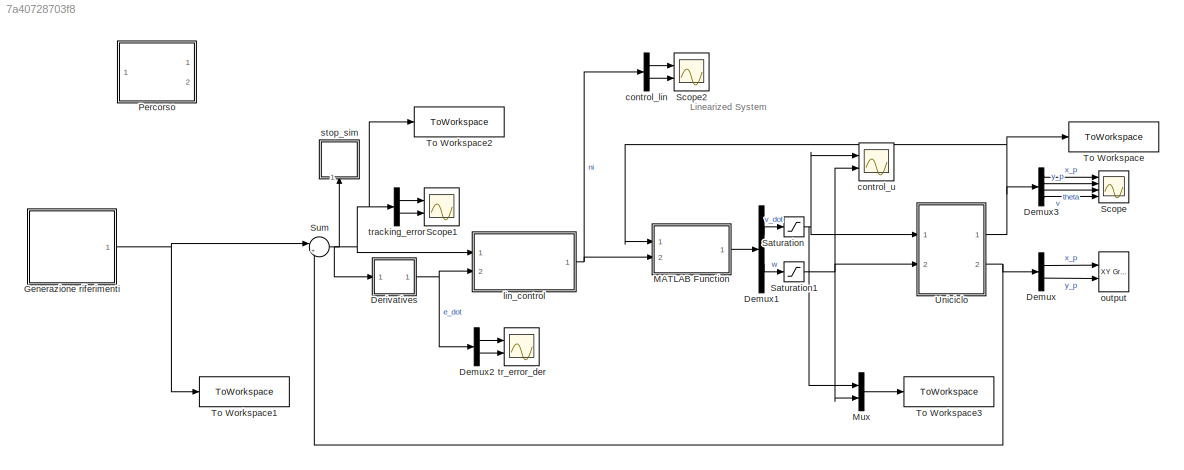
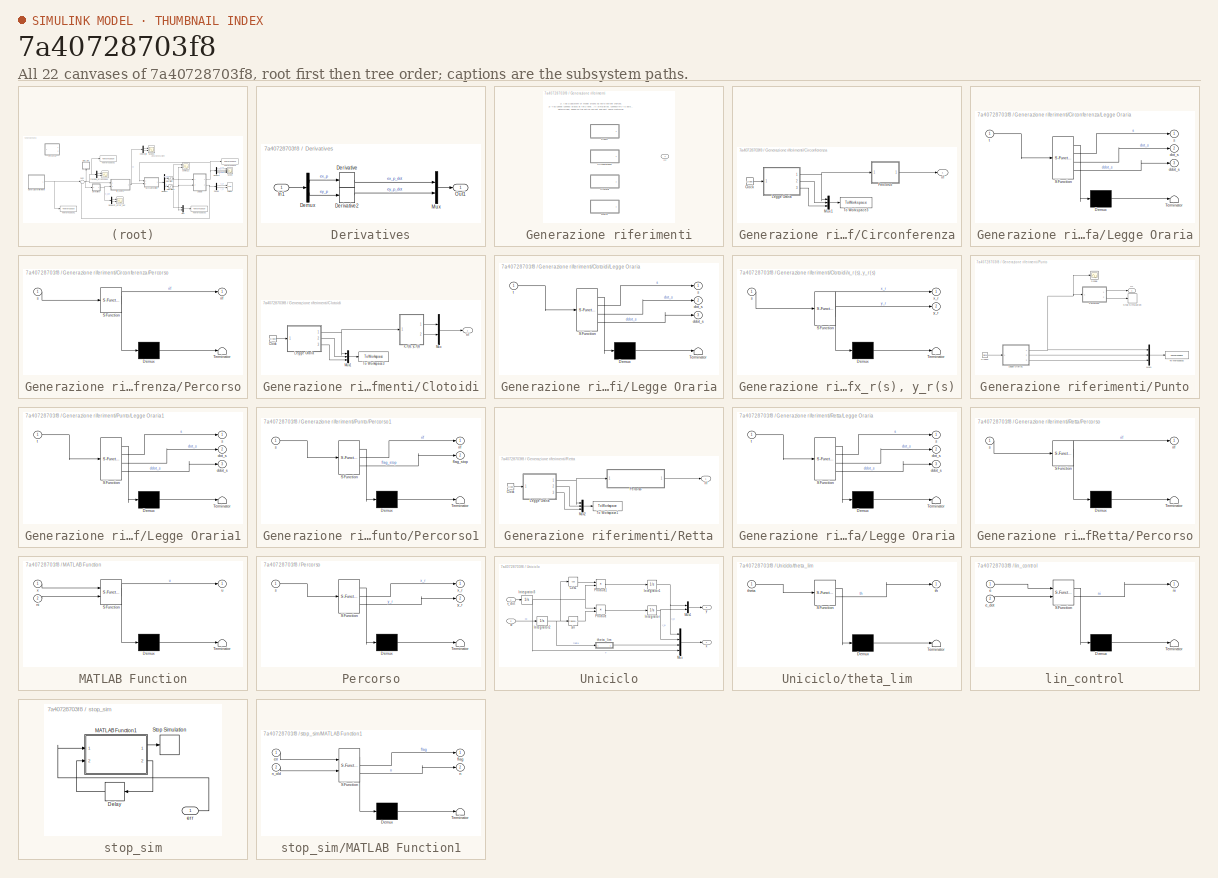
[diagram: thumbnail index - all 22 canvases of the model, root first then tree order]
MODEL slx_7a40728703f8
KIND model
CONFIG AbsTol = auto
CONFIG EnableMultiTasking = off
CONFIG FixedStep = auto
CONFIG InitFcn = init_uniciclo
CONFIG MaxStep = 0.01
CONFIG MinStep = auto
CONFIG RelTol = 1e-3
CONFIG SampleTimeConstraint = Unconstrained
CONFIG Solver = VariableStepAuto
CONFIG SolverName = VariableStepAuto
CONFIG StartTime = 0.0
CONFIG StopFcn = stop_uniciclo
CONFIG StopTime = Inf
BLOCK [Demux] Demux
  Outputs = 2
  Ports = [1, 2]
BLOCK [Demux] Demux1
  Outputs = 2
  Ports = [1, 2]
BLOCK [Demux] Demux2
  Outputs = 2
  Ports = [1, 2]
BLOCK [Demux] Demux3
  Ports = [1, 4]
BLOCK [SubSystem] Derivatives
  Ports = [1, 1]
  RequestExecContextInheritance = off
BLOCK [Demux] Derivatives/Demux
  Outputs = 2
  Ports = [1, 2]
BLOCK [Derivative] Derivatives/Derivative
  CoefficientInTFapproximation = 1e10
BLOCK [Derivative] Derivatives/Derivative2
  CoefficientInTFapproximation = 1e10
BLOCK [Inport] Derivatives/In1
BLOCK [Mux] Derivatives/Mux
  DisplayOption = bar
  Inputs = 2
  Ports = [2, 1]
BLOCK [Outport] Derivatives/Out1
BLOCK [SubSystem] Generazione riferimenti
  Ports = [0, 1]
  RequestExecContextInheritance = off
  Variant = on
BLOCK [SubSystem] Generazione riferimenti/Circonferenza
  Ports = [0, 1]
  RequestExecContextInheritance = off
  VariantControl = Circonferenza
BLOCK [Clock] Generazione riferimenti/Circonferenza/Clock
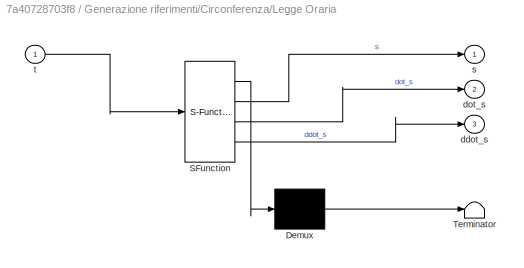
BLOCK [SubSystem] Generazione riferimenti/Circonferenza/Legge Oraria
  ErrorFcn = Stateflow.Translate.translate
  PermitHierarchicalResolution = ExplicitOnly
  Ports = [1, 3]
  RequestExecContextInheritance = off
  SFBlockType = MATLAB Function
  TreatAsAtomicUnit = on
BLOCK [Demux] Generazione riferimenti/Circonferenza/Legge Oraria/ Demux 
  Outputs = 1
  Ports = [1, 1]
BLOCK [S-Function] Generazione riferimenti/Circonferenza/Legge Oraria/ SFunction 
  EnableBusSupport = on
  FunctionName = sf_sfun
  Parameters = v_rif
  PortCounts = [1 4]
  Ports = [1, 4]
  SFcnIsStateOwnerBlock = off
  SFunctionDeploymentMode = off
  Tag = Stateflow S-Function 9
BLOCK [Terminator] Generazione riferimenti/Circonferenza/Legge Oraria/ Terminator 
BLOCK [Outport] Generazione riferimenti/Circonferenza/Legge Oraria/ddot_s
  Port = 3
BLOCK [Outport] Generazione riferimenti/Circonferenza/Legge Oraria/dot_s
  Port = 2
BLOCK [Outport] Generazione riferimenti/Circonferenza/Legge Oraria/s
BLOCK [Inport] Generazione riferimenti/Circonferenza/Legge Oraria/t
BLOCK [Mux] Generazione riferimenti/Circonferenza/Mux1
  DisplayOption = bar
  Inputs = 3
  Ports = [3, 1]
BLOCK [SubSystem] Generazione riferimenti/Circonferenza/Percorso
  ErrorFcn = Stateflow.Translate.translate
  PermitHierarchicalResolution = ExplicitOnly
  Ports = [1, 1]
  RequestExecContextInheritance = off
  SFBlockType = MATLAB Function
  TreatAsAtomicUnit = on
BLOCK [Demux] Generazione riferimenti/Circonferenza/Percorso/ Demux 
  Outputs = 1
  Ports = [1, 1]
BLOCK [S-Function] Generazione riferimenti/Circonferenza/Percorso/ SFunction 
  EnableBusSupport = on
  FunctionName = sf_sfun
  Parameters = centro,v_r
  PortCounts = [1 2]
  Ports = [1, 2]
  SFcnIsStateOwnerBlock = off
  SFunctionDeploymentMode = off
  Tag = Stateflow S-Function 10
BLOCK [Terminator] Generazione riferimenti/Circonferenza/Percorso/ Terminator 
BLOCK [Outport] Generazione riferimenti/Circonferenza/Percorso/rif
BLOCK [Inport] Generazione riferimenti/Circonferenza/Percorso/s
BLOCK [ToWorkspace] Generazione riferimenti/Circonferenza/To Workspace3
  FixptAsFi = on
  MaxDataPoints = inf
  Ports = [1]
  SampleTime = -1
  SaveFormat = Timeseries
  VariableName = curv_coord
BLOCK [Outport] Generazione riferimenti/Circonferenza/rif
BLOCK [SubSystem] Generazione riferimenti/Clotoidi
  Ports = [0, 1]
  RequestExecContextInheritance = off
  VariantControl = Clotoidi
BLOCK [Clock] Generazione riferimenti/Clotoidi/Clock
BLOCK [SubSystem] Generazione riferimenti/Clotoidi/Legge Oraria
  ErrorFcn = Stateflow.Translate.translate
  PermitHierarchicalResolution = ExplicitOnly
  Ports = [1, 3]
  RequestExecContextInheritance = off
  SFBlockType = MATLAB Function
  TreatAsAtomicUnit = on
BLOCK [Demux] Generazione riferimenti/Clotoidi/Legge Oraria/ Demux 
  Outputs = 1
  Ports = [1, 1]
BLOCK [S-Function] Generazione riferimenti/Clotoidi/Legge Oraria/ SFunction 
  EnableBusSupport = on
  FunctionName = sf_sfun
  Parameters = v_rif
  PortCounts = [1 4]
  Ports = [1, 4]
  SFcnIsStateOwnerBlock = off
  SFunctionDeploymentMode = off
  Tag = Stateflow S-Function 7
BLOCK [Terminator] Generazione riferimenti/Clotoidi/Legge Oraria/ Terminator 
BLOCK [Outport] Generazione riferimenti/Clotoidi/Legge Oraria/ddot_s
  Port = 3
BLOCK [Outport] Generazione riferimenti/Clotoidi/Legge Oraria/dot_s
  Port = 2
BLOCK [Outport] Generazione riferimenti/Clotoidi/Legge Oraria/s
BLOCK [Inport] Generazione riferimenti/Clotoidi/Legge Oraria/t
BLOCK [Mux] Generazione riferimenti/Clotoidi/Mux
  DisplayOption = bar
  Inputs = 2
  Ports = [2, 1]
BLOCK [Mux] Generazione riferimenti/Clotoidi/Mux1
  DisplayOption = bar
  Inputs = 3
  Ports = [3, 1]
BLOCK [ToWorkspace] Generazione riferimenti/Clotoidi/To Workspace3
  FixptAsFi = on
  MaxDataPoints = inf
  Ports = [1]
  SampleTime = -1
  SaveFormat = Timeseries
  VariableName = curv_coord
BLOCK [Outport] Generazione riferimenti/Clotoidi/rif
BLOCK [SubSystem] Generazione riferimenti/Clotoidi/x_r(s), y_r(s)
  ErrorFcn = Stateflow.Translate.translate
  PermitHierarchicalResolution = ExplicitOnly
  Ports = [1, 2]
  RequestExecContextInheritance = off
  SFBlockType = MATLAB Function
  TreatAsAtomicUnit = on
BLOCK [Demux] Generazione riferimenti/Clotoidi/x_r(s), y_r(s)/ Demux 
  Outputs = 1
  Ports = [1, 1]
BLOCK [S-Function] Generazione riferimenti/Clotoidi/x_r(s), y_r(s)/ SFunction 
  EnableBusSupport = on
  FunctionName = sf_sfun
  Parameters = Lsofar,Lsofarclot,Ltot,indexclot,n_p,theta_rette,xp,yp
  PortCounts = [1 3]
  Ports = [1, 3]
  SFcnIsStateOwnerBlock = off
  SFunctionDeploymentMode = off
  Tag = Stateflow S-Function 13
BLOCK [Terminator] Generazione riferimenti/Clotoidi/x_r(s), y_r(s)/ Terminator 
BLOCK [Inport] Generazione riferimenti/Clotoidi/x_r(s), y_r(s)/s
BLOCK [Outport] Generazione riferimenti/Clotoidi/x_r(s), y_r(s)/x_r
  VectorParamsAs1DForOutWhenUnconnected = off
BLOCK [Outport] Generazione riferimenti/Clotoidi/x_r(s), y_r(s)/y_r
  Port = 2
  VectorParamsAs1DForOutWhenUnconnected = off
BLOCK [SubSystem] Generazione riferimenti/Punto
  Ports = [0, 1]
  RequestExecContextInheritance = off
  VariantControl = Punto
BLOCK [Clock] Generazione riferimenti/Punto/Clock2
BLOCK [SubSystem] Generazione riferimenti/Punto/Legge Oraria1
  ErrorFcn = Stateflow.Translate.translate
  PermitHierarchicalResolution = ExplicitOnly
  Ports = [1, 3]
  RequestExecContextInheritance = off
  SFBlockType = MATLAB Function
  TreatAsAtomicUnit = on
BLOCK [Demux] Generazione riferimenti/Punto/Legge Oraria1/ Demux 
  Outputs = 1
  Ports = [1, 1]
BLOCK [S-Function] Generazione riferimenti/Punto/Legge Oraria1/ SFunction 
  EnableBusSupport = on
  FunctionName = sf_sfun
  Parameters = v_rif
  PortCounts = [1 4]
  Ports = [1, 4]
  SFcnIsStateOwnerBlock = off
  SFunctionDeploymentMode = off
  Tag = Stateflow S-Function 16
BLOCK [Terminator] Generazione riferimenti/Punto/Legge Oraria1/ Terminator 
BLOCK [Outport] Generazione riferimenti/Punto/Legge Oraria1/ddot_s
  Port = 3
BLOCK [Outport] Generazione riferimenti/Punto/Legge Oraria1/dot_s
  Port = 2
BLOCK [Outport] Generazione riferimenti/Punto/Legge Oraria1/s
BLOCK [Inport] Generazione riferimenti/Punto/Legge Oraria1/t
BLOCK [Mux] Generazione riferimenti/Punto/Mux1
  DisplayOption = bar
  Inputs = 3
  Ports = [3, 1]
BLOCK [SubSystem] Generazione riferimenti/Punto/Percorso1
  ErrorFcn = Stateflow.Translate.translate
  PermitHierarchicalResolution = ExplicitOnly
  Ports = [1, 2]
  RequestExecContextInheritance = off
  SFBlockType = MATLAB Function
  TreatAsAtomicUnit = on
BLOCK [Demux] Generazione riferimenti/Punto/Percorso1/ Demux 
  Outputs = 1
  Ports = [1, 1]
BLOCK [S-Function] Generazione riferimenti/Punto/Percorso1/ SFunction 
  EnableBusSupport = on
  FunctionName = sf_sfun
  Parameters = dir_retta,s_finale,x_p_iniziale,y_p_iniziale
  PortCounts = [1 3]
  Ports = [1, 3]
  SFcnIsStateOwnerBlock = off
  SFunctionDeploymentMode = off
  Tag = Stateflow S-Function 28
BLOCK [Terminator] Generazione riferimenti/Punto/Percorso1/ Terminator 
BLOCK [Outport] Generazione riferimenti/Punto/Percorso1/flag_stop
  Port = 2
BLOCK [Outport] Generazione riferimenti/Punto/Percorso1/rif
BLOCK [Inport] Generazione riferimenti/Punto/Percorso1/s
BLOCK [Scope] Generazione riferimenti/Punto/Scope
  Floating = off
  NumInputPorts = 1
  Ports = [1]
  ScopeSpecificationString = Simulink.scopes.TimeScopeBlockCfg('CurrentConfiguration', extmgr.ConfigurationSet(extmgr.Configuration('Core','General UI',true),extmgr.Configuration('Core','Source UI',true),extmgr.Configuration('Sources','WiredSimulink',true,'DataLoggingVariableName','ScopeData1'),extmgr.Configuration('Visuals','Time Domain',true,'SerializedDisplays',{struct('MinYLimReal','-8.54167','MaxYLimReal','76.875','YLabe...<+1544ch>
BLOCK [Stop] Generazione riferimenti/Punto/Stop Simulation
BLOCK [ToWorkspace] Generazione riferimenti/Punto/To Workspace2
  FixptAsFi = on
  MaxDataPoints = inf
  Ports = [1]
  SampleTime = -1
  SaveFormat = Timeseries
  VariableName = curv_coord
BLOCK [Outport] Generazione riferimenti/Punto/rif
BLOCK [SubSystem] Generazione riferimenti/Retta
  Ports = [0, 1]
  RequestExecContextInheritance = off
  VariantControl = Retta
BLOCK [Clock] Generazione riferimenti/Retta/Clock
BLOCK [SubSystem] Generazione riferimenti/Retta/Legge Oraria
  ErrorFcn = Stateflow.Translate.translate
  PermitHierarchicalResolution = ExplicitOnly
  Ports = [1, 3]
  RequestExecContextInheritance = off
  SFBlockType = MATLAB Function
  TreatAsAtomicUnit = on
BLOCK [Demux] Generazione riferimenti/Retta/Legge Oraria/ Demux 
  Outputs = 1
  Ports = [1, 1]
BLOCK [S-Function] Generazione riferimenti/Retta/Legge Oraria/ SFunction 
  EnableBusSupport = on
  FunctionName = sf_sfun
  Parameters = v_rif
  PortCounts = [1 4]
  Ports = [1, 4]
  SFcnIsStateOwnerBlock = off
  SFunctionDeploymentMode = off
  Tag = Stateflow S-Function 11
BLOCK [Terminator] Generazione riferimenti/Retta/Legge Oraria/ Terminator 
BLOCK [Outport] Generazione riferimenti/Retta/Legge Oraria/ddot_s
  Port = 3
BLOCK [Outport] Generazione riferimenti/Retta/Legge Oraria/dot_s
  Port = 2
BLOCK [Outport] Generazione riferimenti/Retta/Legge Oraria/s
BLOCK [Inport] Generazione riferimenti/Retta/Legge Oraria/t
BLOCK [Mux] Generazione riferimenti/Retta/Mux2
  DisplayOption = bar
  Inputs = 3
  Ports = [3, 1]
BLOCK [SubSystem] Generazione riferimenti/Retta/Percorso
  ErrorFcn = Stateflow.Translate.translate
  PermitHierarchicalResolution = ExplicitOnly
  Ports = [1, 1]
  RequestExecContextInheritance = off
  SFBlockType = MATLAB Function
  TreatAsAtomicUnit = on
BLOCK [Demux] Generazione riferimenti/Retta/Percorso/ Demux 
  Outputs = 1
  Ports = [1, 1]
BLOCK [S-Function] Generazione riferimenti/Retta/Percorso/ SFunction 
  EnableBusSupport = on
  FunctionName = sf_sfun
  Parameters = dir_retta
  PortCounts = [1 2]
  Ports = [1, 2]
  SFcnIsStateOwnerBlock = off
  SFunctionDeploymentMode = off
  Tag = Stateflow S-Function 12
BLOCK [Terminator] Generazione riferimenti/Retta/Percorso/ Terminator 
BLOCK [Outport] Generazione riferimenti/Retta/Percorso/rif
BLOCK [Inport] Generazione riferimenti/Retta/Percorso/s
BLOCK [ToWorkspace] Generazione riferimenti/Retta/To Workspace1
  FixptAsFi = on
  MaxDataPoints = inf
  Ports = [1]
  SampleTime = -1
  SaveFormat = Timeseries
  VariableName = curv_coord
BLOCK [Outport] Generazione riferimenti/Retta/rif
BLOCK [Outport] Generazione riferimenti/rif
BLOCK [SubSystem] MATLAB Function
  ErrorFcn = Stateflow.Translate.translate
  PermitHierarchicalResolution = ExplicitOnly
  Ports = [2, 1]
  RequestExecContextInheritance = off
  SFBlockType = MATLAB Function
  TreatAsAtomicUnit = on
BLOCK [Demux] MATLAB Function/ Demux 
  Outputs = 1
  Ports = [1, 1]
BLOCK [S-Function] MATLAB Function/ SFunction 
  EnableBusSupport = on
  FunctionName = sf_sfun
  PortCounts = [2 2]
  Ports = [2, 2]
  SFcnIsStateOwnerBlock = off
  SFunctionDeploymentMode = off
  Tag = Stateflow S-Function 2
BLOCK [Terminator] MATLAB Function/ Terminator 
BLOCK [Inport] MATLAB Function/ni
  Port = 2
BLOCK [Outport] MATLAB Function/u
BLOCK [Inport] MATLAB Function/x
BLOCK [Mux] Mux
  DisplayOption = bar
  Inputs = 2
  Ports = [2, 1]
BLOCK [SubSystem] Percorso
  Commented = on
  ErrorFcn = Stateflow.Translate.translate
  PermitHierarchicalResolution = ExplicitOnly
  Ports = [1, 2]
  RequestExecContextInheritance = off
  SFBlockType = MATLAB Function
  TreatAsAtomicUnit = on
BLOCK [Demux] Percorso/ Demux 
  Outputs = 1
  Ports = [1, 1]
BLOCK [S-Function] Percorso/ SFunction 
  EnableBusSupport = on
  FunctionName = sf_sfun
  PortCounts = [1 3]
  Ports = [1, 3]
  SFcnIsStateOwnerBlock = off
  SFunctionDeploymentMode = off
  Tag = Stateflow S-Function 8
BLOCK [Terminator] Percorso/ Terminator 
BLOCK [Inport] Percorso/s
BLOCK [Outport] Percorso/x_r
BLOCK [Outport] Percorso/y_r
  Port = 2
BLOCK [Saturate] Saturation
  LowerLimit = -v_dot_sat
  UpperLimit = v_dot_sat
BLOCK [Saturate] Saturation1
  LowerLimit = -w_sat
  UpperLimit = w_sat
BLOCK [Scope] Scope
  Floating = off
  NumInputPorts = 4
  Ports = [4]
  ScopeSpecificationString = Simulink.scopes.TimeScopeBlockCfg('CurrentConfiguration', extmgr.ConfigurationSet(extmgr.Configuration('Core','General UI',true),extmgr.Configuration('Core','Source UI',true),extmgr.Configuration('Sources','WiredSimulink',true,'DataLoggingVariableName','ScopeData4'),extmgr.Configuration('Visuals','Time Domain',true,'SerializedDisplays',{struct('MinYLimReal','-14.28289','MaxYLimReal','11.72577','YL...<+1550ch>
BLOCK [Scope] Scope1
  Floating = off
  NumInputPorts = 2
  Ports = [2]
  ScopeSpecificationString = Simulink.scopes.TimeScopeBlockCfg('CurrentConfiguration', extmgr.ConfigurationSet(extmgr.Configuration('Core','General UI',true),extmgr.Configuration('Core','Source UI',true),extmgr.Configuration('Sources','WiredSimulink',true,'DataLoggingVariableName','ScopeData1'),extmgr.Configuration('Visuals','Time Domain',true,'SerializedDisplays',{struct('MinYLimReal','-0.00141','MaxYLimReal','0.02236','YLab...<+1443ch>
BLOCK [Scope] Scope2
  Floating = off
  NumInputPorts = 2
  Ports = [2]
  ScopeSpecificationString = Simulink.scopes.TimeScopeBlockCfg('CurrentConfiguration', extmgr.ConfigurationSet(extmgr.Configuration('Core','General UI',true),extmgr.Configuration('Core','Source UI',true),extmgr.Configuration('Sources','WiredSimulink',true,'DataLoggingVariableName','ScopeData3'),extmgr.Configuration('Visuals','Time Domain',true,'SerializedDisplays',{struct('MinYLimReal','-257.45886','MaxYLimReal','714.73045','...<+1477ch>
BLOCK [Sum] Sum
  Inputs = |+-
  Ports = [2, 1]
BLOCK [ToWorkspace] To Workspace
  FixptAsFi = on
  MaxDataPoints = inf
  Ports = [1]
  SampleTime = -1
  SaveFormat = Timeseries
  VariableName = state_ts
BLOCK [ToWorkspace] To Workspace1
  FixptAsFi = on
  MaxDataPoints = inf
  Ports = [1]
  SampleTime = -1
  SaveFormat = Timeseries
  VariableName = rif
BLOCK [ToWorkspace] To Workspace2
  FixptAsFi = on
  MaxDataPoints = inf
  Ports = [1]
  SampleTime = -1
  SaveFormat = Timeseries
  VariableName = err
BLOCK [ToWorkspace] To Workspace3
  FixptAsFi = on
  MaxDataPoints = inf
  Ports = [1]
  SampleTime = -1
  SaveFormat = Timeseries
  VariableName = contr_u
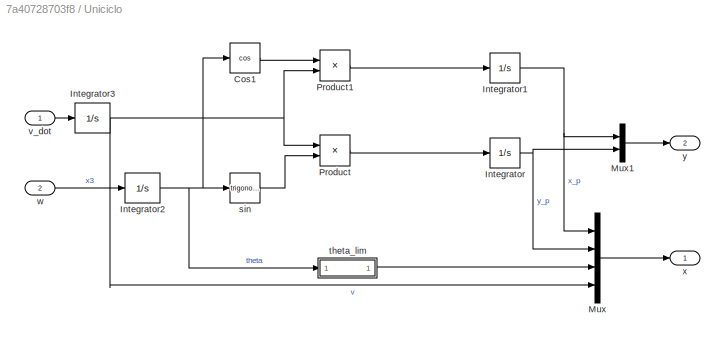
BLOCK [SubSystem] Uniciclo
  Ports = [2, 2]
  RequestExecContextInheritance = off
BLOCK [Trigonometry] Uniciclo/Cos1
  Operator = cos
  Ports = [1, 1]
BLOCK [Integrator] Uniciclo/Integrator
  InitialCondition = y_p_iniziale
  Ports = [1, 1]
BLOCK [Integrator] Uniciclo/Integrator1
  InitialCondition = x_p_iniziale
  Ports = [1, 1]
BLOCK [Integrator] Uniciclo/Integrator2
  InitialCondition = theta_iniziale
  NameLocation = top
  Ports = [1, 1]
BLOCK [Integrator] Uniciclo/Integrator3
  InitialCondition = v_iniziale
  NameLocation = top
  Ports = [1, 1]
BLOCK [Mux] Uniciclo/Mux
  DisplayOption = bar
  Ports = [4, 1]
BLOCK [Mux] Uniciclo/Mux1
  DisplayOption = bar
  Inputs = 2
  Ports = [2, 1]
BLOCK [Product] Uniciclo/Product
  Ports = [2, 1]
BLOCK [Product] Uniciclo/Product1
  Ports = [2, 1]
BLOCK [Trigonometry] Uniciclo/sin
  Ports = [1, 1]
BLOCK [SubSystem] Uniciclo/theta_lim
  ErrorFcn = Stateflow.Translate.translate
  NameLocation = top
  PermitHierarchicalResolution = ExplicitOnly
  Ports = [1, 1]
  RequestExecContextInheritance = off
  SFBlockType = MATLAB Function
  TreatAsAtomicUnit = on
BLOCK [Demux] Uniciclo/theta_lim/ Demux 
  Outputs = 1
  Ports = [1, 1]
BLOCK [S-Function] Uniciclo/theta_lim/ SFunction 
  EnableBusSupport = on
  FunctionName = sf_sfun
  PortCounts = [1 2]
  Ports = [1, 2]
  SFcnIsStateOwnerBlock = off
  SFunctionDeploymentMode = off
  Tag = Stateflow S-Function 4
BLOCK [Terminator] Uniciclo/theta_lim/ Terminator 
BLOCK [Outport] Uniciclo/theta_lim/th
BLOCK [Inport] Uniciclo/theta_lim/theta
BLOCK [Inport] Uniciclo/v_dot
BLOCK [Inport] Uniciclo/w
  Port = 2
BLOCK [Outport] Uniciclo/x
BLOCK [Outport] Uniciclo/y
  Port = 2
BLOCK [Demux] control_lin
  Outputs = 2
  Ports = [1, 2]
BLOCK [Scope] control_u
  Floating = off
  NumInputPorts = 2
  Ports = [2]
  ScopeSpecificationString = Simulink.scopes.TimeScopeBlockCfg('CurrentConfiguration', extmgr.ConfigurationSet(extmgr.Configuration('Core','General UI',true),extmgr.Configuration('Core','Source UI',true),extmgr.Configuration('Sources','WiredSimulink',true,'DataLoggingVariableName','ScopeData2'),extmgr.Configuration('Visuals','Time Domain',true,'SerializedDisplays',{struct('MinYLimReal','-11.78097','MaxYLimReal','11.78097','YL...<+1509ch>
BLOCK [SubSystem] lin_control
  ErrorFcn = Stateflow.Translate.translate
  PermitHierarchicalResolution = ExplicitOnly
  Ports = [2, 1]
  RequestExecContextInheritance = off
  SFBlockType = MATLAB Function
  TreatAsAtomicUnit = on
BLOCK [Demux] lin_control/ Demux 
  Outputs = 1
  Ports = [1, 1]
BLOCK [S-Function] lin_control/ SFunction 
  EnableBusSupport = on
  FunctionName = sf_sfun
  Parameters = K1,K2
  PortCounts = [2 2]
  Ports = [2, 2]
  SFcnIsStateOwnerBlock = off
  SFunctionDeploymentMode = off
  Tag = Stateflow S-Function 1
BLOCK [Terminator] lin_control/ Terminator 
BLOCK [Inport] lin_control/e
BLOCK [Inport] lin_control/e_dot
  Port = 2
BLOCK [Outport] lin_control/ni
BLOCK [Reference] output  REF=simulink/Sinks/XY Graph
  Ports = [2]
  SourceBlock = simulink/Sinks/XY Graph
  SourceProductBaseCode = SL
  SourceType = XY scope.
BLOCK [SubSystem] stop_sim
  Commented = on
  NameLocation = top
  Ports = [1]
  RequestExecContextInheritance = off
BLOCK [Delay] stop_sim/Delay
  DelayLength = 1
  InputPortMap = u0
  Ports = [1, 1]
BLOCK [SubSystem] stop_sim/MATLAB Function1
  ErrorFcn = Stateflow.Translate.translate
  PermitHierarchicalResolution = ExplicitOnly
  Ports = [2, 2]
  RequestExecContextInheritance = off
  SFBlockType = MATLAB Function
  TreatAsAtomicUnit = on
BLOCK [Demux] stop_sim/MATLAB Function1/ Demux 
  Outputs = 1
  Ports = [1, 1]
BLOCK [S-Function] stop_sim/MATLAB Function1/ SFunction 
  EnableBusSupport = on
  FunctionName = sf_sfun
  Parameters = threshold
  PortCounts = [2 3]
  Ports = [2, 3]
  SFcnIsStateOwnerBlock = off
  SFunctionDeploymentMode = off
  Tag = Stateflow S-Function 5
BLOCK [Terminator] stop_sim/MATLAB Function1/ Terminator 
BLOCK [Inport] stop_sim/MATLAB Function1/err
BLOCK [Outport] stop_sim/MATLAB Function1/flag
BLOCK [Outport] stop_sim/MATLAB Function1/n
  Port = 2
BLOCK [Inport] stop_sim/MATLAB Function1/n_old
  Port = 2
BLOCK [Stop] stop_sim/Stop Simulation
BLOCK [Inport] stop_sim/err
BLOCK [Scope] tr_error_der
  Floating = off
  NumInputPorts = 2
  Ports = [2]
  ScopeSpecificationString = Simulink.scopes.TimeScopeBlockCfg('CurrentConfiguration', extmgr.ConfigurationSet(extmgr.Configuration('Core','General UI',true),extmgr.Configuration('Core','Source UI',true),extmgr.Configuration('Sources','WiredSimulink',true),extmgr.Configuration('Visuals','Time Domain',true,'SerializedDisplays',{struct('MinYLimReal','-0.68551','MaxYLimReal','0.26803','YLabelReal','','MinYLimMag','0.00000','MaxY...<+1383ch>
BLOCK [Demux] tracking_error
  Outputs = 2
  Ports = [1, 2]
ANNOTATION (root): Linearized System
ANNOTATION Generazione riferimenti: 1) Add Subsystem or Model blocks as valid variant choices. 2) You cannot connect blocks at this level. At simulation, connectivity is automatically determined, based on the active variant and port name matching.
LINE Demux1:1 -> Saturation:1
LINE Demux1:2 -> Saturation1:1
LINE Demux2:1 -> tr_error_der:1
LINE Demux2:2 -> tr_error_der:2
LINE Demux3:1 -> Scope:1
LINE Demux3:2 -> Scope:2
LINE Demux3:3 -> Scope:3
LINE Demux3:4 -> Scope:4
LINE Demux:1 -> output:1
LINE Demux:2 -> output:2
LINE Derivatives/Demux:1 -> Derivatives/Derivative:1
LINE Derivatives/Demux:2 -> Derivatives/Derivative2:1
LINE Derivatives/Derivative2:1 -> Derivatives/Mux:2
LINE Derivatives/Derivative:1 -> Derivatives/Mux:1
LINE Derivatives/In1:1 -> Derivatives/Demux:1
LINE Derivatives/Mux:1 -> Derivatives/Out1:1
NET Derivatives:1 -> Demux2:1, lin_control:2
LINE Generazione riferimenti/Circonferenza/Clock:1 -> Generazione riferimenti/Circonferenza/Legge Oraria:1
NET Generazione riferimenti/Circonferenza/Legge Oraria:1 -> Generazione riferimenti/Circonferenza/Mux1:1, Generazione riferimenti/Circonferenza/Percorso:1
LINE Generazione riferimenti/Circonferenza/Legge Oraria:2 -> Generazione riferimenti/Circonferenza/Mux1:2
LINE Generazione riferimenti/Circonferenza/Legge Oraria:3 -> Generazione riferimenti/Circonferenza/Mux1:3
LINE Generazione riferimenti/Circonferenza/Mux1:1 -> Generazione riferimenti/Circonferenza/To Workspace3:1
LINE Generazione riferimenti/Circonferenza/Percorso:1 -> Generazione riferimenti/Circonferenza/rif:1
LINE Generazione riferimenti/Clotoidi/Clock:1 -> Generazione riferimenti/Clotoidi/Legge Oraria:1
NET Generazione riferimenti/Clotoidi/Legge Oraria:1 -> Generazione riferimenti/Clotoidi/Mux1:1, Generazione riferimenti/Clotoidi/x_r(s), y_r(s):1
LINE Generazione riferimenti/Clotoidi/Legge Oraria:2 -> Generazione riferimenti/Clotoidi/Mux1:2
LINE Generazione riferimenti/Clotoidi/Legge Oraria:3 -> Generazione riferimenti/Clotoidi/Mux1:3
LINE Generazione riferimenti/Clotoidi/Mux1:1 -> Generazione riferimenti/Clotoidi/To Workspace3:1
LINE Generazione riferimenti/Clotoidi/Mux:1 -> Generazione riferimenti/Clotoidi/rif:1
LINE Generazione riferimenti/Clotoidi/x_r(s), y_r(s):1 -> Generazione riferimenti/Clotoidi/Mux:1
LINE Generazione riferimenti/Clotoidi/x_r(s), y_r(s):2 -> Generazione riferimenti/Clotoidi/Mux:2
LINE Generazione riferimenti/Punto/Clock2:1 -> Generazione riferimenti/Punto/Legge Oraria1:1
NET Generazione riferimenti/Punto/Legge Oraria1:1 -> Generazione riferimenti/Punto/Mux1:1, Generazione riferimenti/Punto/Percorso1:1, Generazione riferimenti/Punto/Scope:1
LINE Generazione riferimenti/Punto/Legge Oraria1:2 -> Generazione riferimenti/Punto/Mux1:2
LINE Generazione riferimenti/Punto/Legge Oraria1:3 -> Generazione riferimenti/Punto/Mux1:3
LINE Generazione riferimenti/Punto/Mux1:1 -> Generazione riferimenti/Punto/To Workspace2:1
LINE Generazione riferimenti/Punto/Percorso1:1 -> Generazione riferimenti/Punto/rif:1
LINE Generazione riferimenti/Punto/Percorso1:2 -> Generazione riferimenti/Punto/Stop Simulation:1
LINE Generazione riferimenti/Retta/Clock:1 -> Generazione riferimenti/Retta/Legge Oraria:1
NET Generazione riferimenti/Retta/Legge Oraria:1 -> Generazione riferimenti/Retta/Mux2:1, Generazione riferimenti/Retta/Percorso:1
LINE Generazione riferimenti/Retta/Legge Oraria:2 -> Generazione riferimenti/Retta/Mux2:2
LINE Generazione riferimenti/Retta/Legge Oraria:3 -> Generazione riferimenti/Retta/Mux2:3
LINE Generazione riferimenti/Retta/Mux2:1 -> Generazione riferimenti/Retta/To Workspace1:1
LINE Generazione riferimenti/Retta/Percorso:1 -> Generazione riferimenti/Retta/rif:1
NET Generazione riferimenti:1 -> Sum:1, To Workspace1:1
LINE MATLAB Function:1 -> Demux1:1
LINE Mux:1 -> To Workspace3:1
NET Saturation1:1 -> Mux:2, Uniciclo:2, control_u:2
NET Saturation:1 -> Mux:1, Uniciclo:1, control_u:1
NET Sum:1 -> Derivatives:1, To Workspace2:1, lin_control:1, stop_sim:1, tracking_error:1
LINE Uniciclo/Cos1:1 -> Uniciclo/Product1:1
NET Uniciclo/Integrator1:1 -> Uniciclo/Mux1:1, Uniciclo/Mux:1
NET Uniciclo/Integrator2:1 -> Uniciclo/Cos1:1, Uniciclo/sin:1, Uniciclo/theta_lim:1
NET Uniciclo/Integrator3:1 -> Uniciclo/Mux:4, Uniciclo/Product1:2, Uniciclo/Product:1
NET Uniciclo/Integrator:1 -> Uniciclo/Mux1:2, Uniciclo/Mux:2
LINE Uniciclo/Mux1:1 -> Uniciclo/y:1
LINE Uniciclo/Mux:1 -> Uniciclo/x:1
LINE Uniciclo/Product1:1 -> Uniciclo/Integrator1:1
LINE Uniciclo/Product:1 -> Uniciclo/Integrator:1
LINE Uniciclo/sin:1 -> Uniciclo/Product:2
LINE Uniciclo/theta_lim:1 -> Uniciclo/Mux:3
LINE Uniciclo/v_dot:1 -> Uniciclo/Integrator3:1
LINE Uniciclo/w:1 -> Uniciclo/Integrator2:1
NET Uniciclo:1 -> Demux3:1, MATLAB Function:1, To Workspace:1
NET Uniciclo:2 -> Demux:1, Sum:2
LINE control_lin:1 -> Scope2:1
LINE control_lin:2 -> Scope2:2
NET lin_control:1 -> MATLAB Function:2, control_lin:1
LINE stop_sim/Delay:1 -> stop_sim/MATLAB Function1:2
LINE stop_sim/MATLAB Function1:1 -> stop_sim/Stop Simulation:1
LINE stop_sim/MATLAB Function1:2 -> stop_sim/Delay:1
LINE stop_sim/err:1 -> stop_sim/MATLAB Function1:1
LINE tracking_error:1 -> Scope1:1
LINE tracking_error:2 -> Scope1:2
note: NET lines group one-source signal fan-out (src -> all destinations, sorted); 1:1 wires keep LINE
CHART Generazione riferimenti/Circonferenza/Percorso states=1 transitions=1
  STATE_LABEL 'eML_blk_kernel()'
  STATE_LABEL 'SCRIPT:\nfunction rif = percorso(s, centro, v_r)\n\nr = 10*v_r;  % 1\ntheta_circ = s/r;\n\nif theta_circ >=  3*2*pi % dopotre giri ti fermi\n\ttheta_circ = 3*2*pi;\nend\n\nrif = centro + r*[cos(theta_circ);sin(theta_circ)];\t\t% circonferenza\n\nend\n'
CHART Generazione riferimenti/Retta/Legge Oraria states=1 transitions=1
  STATE_LABEL 'eML_blk_kernel()'
  STATE_LABEL 'SCRIPT:\nfunction [s, dot_s, ddot_s]  = legge_oraria(t, v_rif)\n%#codegen PEPO\n\ns = v_rif*t;\ndot_s = v_rif;\nddot_s = 0.0;\n\n\nend'
CHART Generazione riferimenti/Retta/Percorso states=1 transitions=1
  STATE_LABEL 'eML_blk_kernel()'
  STATE_LABEL 'SCRIPT:\nfunction rif  = retta(s, dir_retta)\n\nrif = [0;0] + s * dir_retta;\n\n\nend'
CHART Generazione riferimenti/Clotoidi/x_r(s), y_r(s) states=1 transitions=1
  STATE_LABEL 'eML_blk_kernel()'
  STATE_LABEL "SCRIPT:\nfunction [x_r,y_r] = percorso(s, indexclot, theta_rette, yp, xp, ...\n\t\t\t\t\t\t\t\t\t\tLsofar, n_p, Lsofarclot, Ltot)\n\t\t\t\t\t\t\t\t\t\ncoder.extrinsic('pointsOnClothoid')\n% fine percorso\nif s >= Ltot\n\ts = Ltot; % cosi` da plottare l'ultimo punto\nend\n\nntratto=0;\n\tXYS = [0; 0]; %definito prima\n\n\t%Parte per capire in che tratto sono\n\tif s < Lsofar(1)\n\t\tntratto=1;\n\telse\n\t\tfor ii=2:(n_p-1)\n\t\t\tif s>=Lsofar(ii-...<+1216ch>"
CHART Generazione riferimenti/Punto/Legge Oraria1 states=1 transitions=1
  STATE_LABEL 'eML_blk_kernel()'
  STATE_LABEL 'SCRIPT:\nfunction [s, dot_s, ddot_s]  = legge_oraria(t, v_rif)\n%#codegen PEPO\n\ns = v_rif*t;\ndot_s = v_rif;\nddot_s = 0.0;\n\n\nend'
CHART Generazione riferimenti/Punto/Percorso1 states=1 transitions=1
  STATE_LABEL 'eML_blk_kernel()'
  STATE_LABEL 'SCRIPT:\nfunction [rif, flag_stop] = retta(s, dir_retta, x_p_iniziale, y_p_iniziale, s_finale)\n\nif s >= s_finale\n\ts = s_finale;\n\tflag_stop = 1;\nelse\n\tflag_stop = 0;\nend\n\nrif = [x_p_iniziale; y_p_iniziale] + s * dir_retta;\n\n\n\n\nend'
CHART lin_control states=1 transitions=1
  STATE_LABEL 'eML_blk_kernel()'
  STATE_LABEL 'SCRIPT:\nfunction ni = lin_control(e, e_dot, K1, K2)\n\nni = K1.*e + K2.*e_dot;\n\nend\n'
CHART MATLAB Function states=1 transitions=1
  STATE_LABEL 'eML_blk_kernel()'
  STATE_LABEL 'SCRIPT:\nfunction u = Linearized(x,ni)\ntheta = x(3);\nv = x(4);\n\nE_inv = inv_E(theta, v);\nG = Gamma();\nu =  -E_inv*G + E_inv*ni;\nend\n\n% gamma\nfunction Gm = Gamma()\nGm = [0;0];\nend\n% \nfunction E_in = inv_E(theta, v)\nE = [cos(theta) -v*sin(theta);\n\t sin(theta)  v*cos(theta)];\nE_in = inv(E);\nend\n'
CHART Uniciclo/theta_lim states=1 transitions=1
  STATE_LABEL 'eML_blk_kernel()'
  STATE_LABEL 'SCRIPT:\nfunction th = theta_lim(theta)\nc = cos(theta);\ns = sin(theta);\nth = atan2(s, c);\n\n'
CHART stop_sim/MATLAB Function1 states=1 transitions=1
  STATE_LABEL 'eML_blk_kernel()'
  STATE_LABEL 'SCRIPT:\nfunction [flag, n] = stop_function(err, n_old, threshold)\n\tflag = 0;\n\tn = n_old;\n\tif norm(err, 2) < threshold\n\t\tn=n+1;\n\telse\n\t\tn=0;\n\tend\n\t\n\tif n > 500\n\t\tflag = 1;\n\t\tn = 0;\n\tend\nend\n'
CHART Generazione riferimenti/Clotoidi/Legge Oraria states=1 transitions=1
  STATE_LABEL 'eML_blk_kernel()'
  STATE_LABEL 'SCRIPT:\nfunction [s, dot_s, ddot_s]  = legge_oraria(t, v_rif)\n%#codegen PEPO\n\ns = v_rif*t;\ndot_s = v_rif;\nddot_s = 0.0;\n\n\nend'
CHART Percorso states=1 transitions=1
  STATE_LABEL 'eML_blk_kernel()'
  STATE_LABEL 'SCRIPT:\nfunction [x_r, y_r] = percorso(s)\n\n\n\n% pos = s * [0; 1] + [1; 0]*cos(s);\t\t\t\t% sinusoide\n\nr = 10;\ntheta_circ = s/r;\n\npos = r*[cos(theta_circ);sin(theta_circ)];\t\t% circonferenza\n%p = [cos(s/2);sin(s/2)];\n%pos = min(1/(s/100+0.01),r) * p;\t\t\t\t\t% spirale\n%pos = 1/(s/100+0.01) * p;\n\nx_r = pos(1);\ny_r = pos(2);\n\nend\n'
CHART Generazione riferimenti/Circonferenza/Legge Oraria states=1 transitions=1
  STATE_LABEL 'eML_blk_kernel()'
  STATE_LABEL 'SCRIPT:\nfunction [s, dot_s, ddot_s]  = legge_oraria(t, v_rif)\n%#codegen PEPO\n\ns = v_rif*t;\ndot_s = v_rif;\nddot_s = 0.0;\n\n\nend'
CHART  states=0 transitions=0
CHART  states=0 transitions=0
CHART  states=0 transitions=0
CHART  states=0 transitions=0
CHART  states=0 transitions=0
CHART  states=0 transitions=0
CHART  states=0 transitions=0
CHART  states=0 transitions=0
CHART  states=0 transitions=0
CHART  states=0 transitions=0
CHART  states=0 transitions=0
CHART  states=0 transitions=0
CHART  states=0 transitions=0
